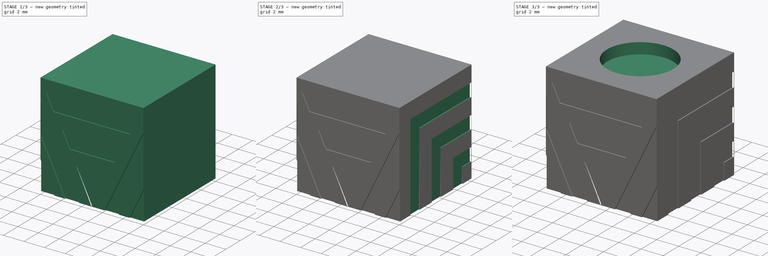
[diagram: build sequence overview — one tinted view per stage of 3, left to right]
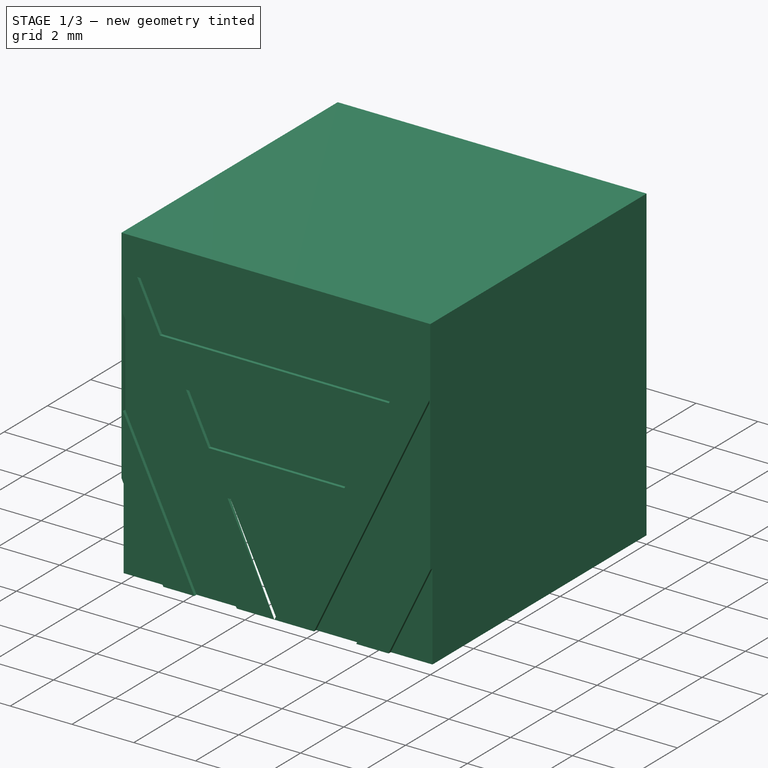
[diagram: stage 1 of 3 — iso view after this stage's code; geometry added in this stage tinted green]
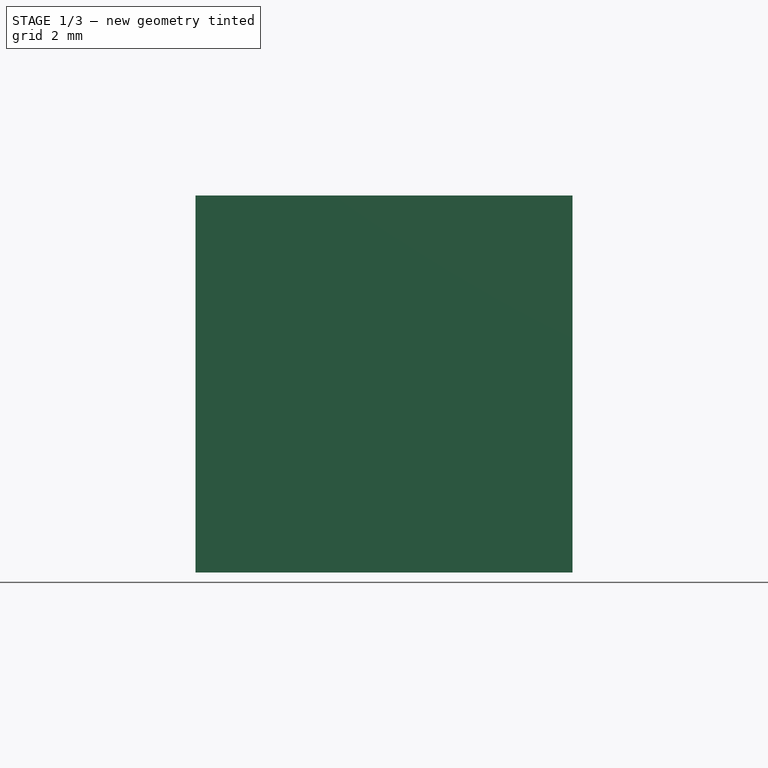
[diagram: stage 1 of 3 — front view after this stage's code; geometry added in this stage tinted green]
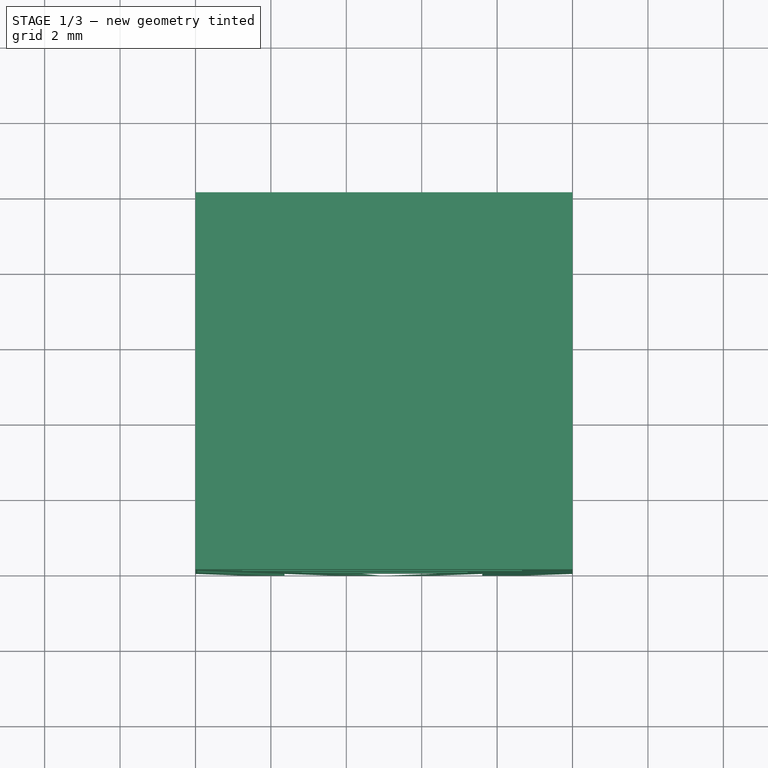
[diagram: stage 1 of 3 — top view after this stage's code; geometry added in this stage tinted green]
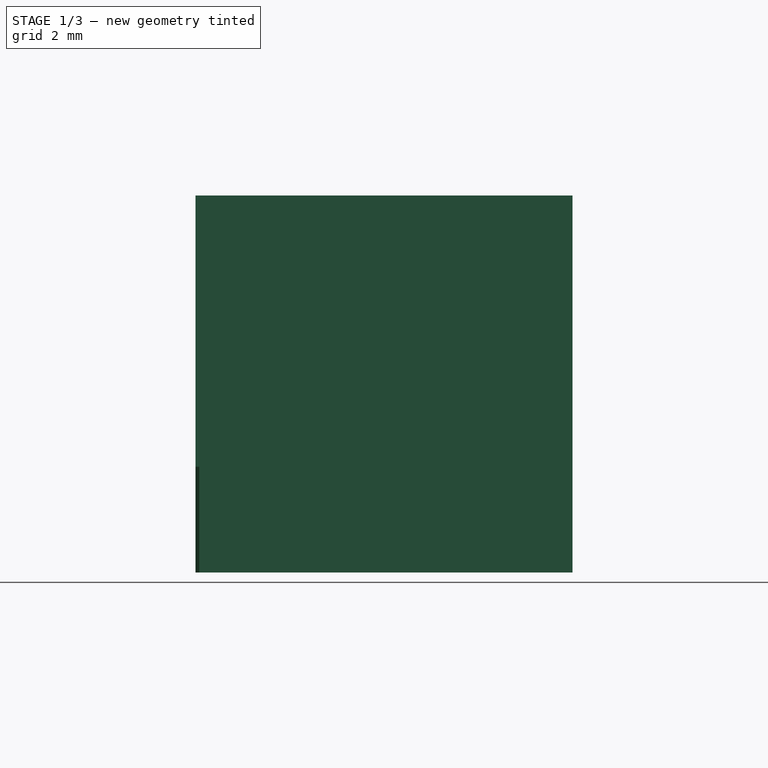
[diagram: stage 1 of 3 — right view after this stage's code; geometry added in this stage tinted green]
FCSTD DOCUMENT  (FreeCAD 0.16R6706 (Git))
Label: totem-third
License: All rights reserved
LicenseURL: http://en.wikipedia.org/wiki/All_rights_reserved
objects: Sketcher::SketchObject×6, PartDesign::Pocket×5, Part::Box×1, PartDesign::Pad×1, PartDesign::Chamfer×1
note: 20 computed .brp shape members not serialized (recipe doc carries the construction recipe); baked Part::Feature solids carry a one-line shape summary decoded from their .brp

FEATURE [Part::Box] Box  label="Cube"
  Height = 10
  Length = 10
  Width = 10
FEATURE [Sketcher::SketchObject] Sketch  label="Front "
  Placement = pos=(0,0,0) rot=(1,0,0;1.5708rad)
  Support = -> Box [Face3]
  sketch-geometry (25):
    g0: LineSegment StartX=-0.0133184 StartY=2.84897 StartZ=0 EndX=-0.0133184 EndY=-0.00063325 EndZ=0
    g1: LineSegment StartX=-0.0133184 StartY=-0.00063325 StartZ=0 EndX=1.35842 EndY=-0.00063325 EndZ=0
    g2: LineSegment StartX=1.35842 StartY=-0.00063325 StartZ=0 EndX=-0.0133184 EndY=2.84897 EndZ=0
    g3: LineSegment StartX=10.0181 StartY=2.84293 StartZ=0 EndX=10.0181 EndY=-0.00667754 EndZ=0
    g4: LineSegment StartX=10.0181 StartY=-0.00667754 StartZ=0 EndX=8.64639 EndY=-0.00667754 EndZ=0
    g5: LineSegment StartX=8.64639 StartY=-0.00667754 StartZ=0 EndX=10.0181 EndY=2.84293 EndZ=0
    g6: LineSegment StartX=0.0521967 StartY=7.64655 StartZ=0 EndX=0.0521967 EndY=4.79695 EndZ=0
    g7: LineSegment StartX=0.0521967 StartY=4.79695 StartZ=0 EndX=2.37799 EndY=-0.0345725 EndZ=0
    g8: LineSegment StartX=2.37799 StartY=-0.0345725 StartZ=0 EndX=3.74974 EndY=-0.0345725 EndZ=0
    g9: LineSegment StartX=3.74974 StartY=-0.0345725 StartZ=0 EndX=0.0521967 EndY=7.64655 EndZ=0
    g10: LineSegment StartX=6.23383 StartY=0 StartZ=0 EndX=7.60557 EndY=0 EndZ=0
    g11: LineSegment StartX=7.60557 StartY=0 StartZ=0 EndX=9.97114 EndY=4.91414 EndZ=0
    g12: LineSegment StartX=9.97114 StartY=4.91414 StartZ=0 EndX=9.97114 EndY=7.76374 EndZ=0
    g13: LineSegment StartX=9.97114 StartY=7.76374 StartZ=0 EndX=6.23383 EndY=0 EndZ=0
    g14: LineSegment StartX=3.4363 StartY=3.14915 StartZ=0 EndX=4.95224 EndY=0 EndZ=0
    g15: LineSegment StartX=4.95224 StartY=0 StartZ=0 EndX=6.46818 EndY=3.14915 EndZ=0
    g16: LineSegment StartX=6.46818 StartY=3.14915 StartZ=0 EndX=3.4363 EndY=3.14915 EndZ=0
    g17: LineSegment StartX=2.09301 StartY=5.9657 StartZ=0 EndX=2.8215 EndY=4.45236 EndZ=0
    g18: LineSegment StartX=2.8215 StartY=4.45236 StartZ=0 EndX=7.21657 EndY=4.45236 EndZ=0
    g19: LineSegment StartX=7.21657 StartY=4.45236 StartZ=0 EndX=7.94506 EndY=5.9657 EndZ=0
    g20: LineSegment StartX=7.94506 StartY=5.9657 StartZ=0 EndX=2.09301 EndY=5.9657 EndZ=0
    g21: LineSegment StartX=0.513832 StartY=8.83872 StartZ=0 EndX=1.24233 EndY=7.32537 EndZ=0
    g22: LineSegment StartX=1.24233 StartY=7.32537 StartZ=0 EndX=8.66119 EndY=7.32537 EndZ=0
    g23: LineSegment StartX=8.66119 StartY=7.32537 StartZ=0 EndX=9.38968 EndY=8.83872 EndZ=0
    g24: LineSegment StartX=9.38968 StartY=8.83872 StartZ=0 EndX=0.513832 EndY=8.83872 EndZ=0
  constraints (56):
    c: Vertical(g0)
    c: Coincident(g0,g1)
    c: Horizontal(g1)
    c: Coincident(g1,g2)
    c: Coincident(g2,g0)
    c: Vertical(g3)
    c: Coincident(g3,g4)
    c: Horizontal(g4)
    c: Coincident(g4,g5)
    c: Coincident(g5,g3)
    c: Vertical(g6)
    c: Coincident(g6,g7)
    c: Coincident(g7,g8)
    c: Horizontal(g8)
    c: Coincident(g8,g9)
    c: Coincident(g9,g6)
    c: PointOnObject(g10,g-1)
    c: Horizontal(g10)
    c: Coincident(g10,g11)
    c: Coincident(g11,g12)
    c: Coincident(g12,g13)
    c: Coincident(g13,g10)
    c: PointOnObject(g14,g-1)
    c: Coincident(g14,g15)
    c: Coincident(g15,g16)
    c: Coincident(g16,g14)
    c: Horizontal(g16)
    c: Coincident(g17,g18)
    c: Horizontal(g18)
    c: Coincident(g18,g19)
    c: Coincident(g19,g20)
    c: Coincident(g20,g17)
    c: Horizontal(g20)
    c: Coincident(g21,g22)
    c: Horizontal(g22)
    c: Coincident(g22,g23)
    c: Coincident(g23,g24)
    c: Coincident(g24,g21)
    c: Horizontal(g24)
    c: Vertical(g12)
    c: Parallel(g9,g7)
    c: Parallel(g7,g2)
    c: Parallel(g13,g11)
    c: Parallel(g11,g5)
    c: Parallel(g9,g21)
    c: Parallel(g17,g9)
    c: Parallel(g14,g9)
    c: Parallel(g15,g13)
    c: Parallel(g19,g13)
    c: Parallel(g23,g13)
    c: Equal(g17,g21)
    c: Equal(g1,g8)
    c: Equal(g10,g4)
    c: Equal(g10,g8)
    c: Equal(g6,g12)
    c: Equal(g23,g21)
FEATURE [PartDesign::Pocket] Pocket
  Length = 0.1
  Sketch = -> Sketch
  Type = 0
FEATURE [Sketcher::SketchObject] Sketch001  label="Side A"
  Placement = pos=(0,0,0) rot=(0.57735,-0.57735,-0.57735;2.0944rad)
  Support = -> Pocket [Face1]
  sketch-geometry (18):
    g0: LineSegment StartX=-8.57662 StartY=0 StartZ=0 EndX=-7.12132 EndY=0 EndZ=0
    g1: LineSegment StartX=-7.12132 StartY=0 StartZ=0 EndX=-7.12132 EndY=2.83547 EndZ=0
    g2: LineSegment StartX=-7.12132 StartY=2.83547 StartZ=0 EndX=-9.95678 EndY=2.83547 EndZ=0
    g3: LineSegment StartX=-9.95678 StartY=2.83547 StartZ=0 EndX=-9.95678 EndY=1.38016 EndZ=0
    g4: LineSegment StartX=-9.95678 StartY=1.38016 StartZ=0 EndX=-8.57662 EndY=1.38016 EndZ=0
    g5: LineSegment StartX=-8.57662 StartY=1.38016 StartZ=0 EndX=-8.57662 EndY=0 EndZ=0
    g6: LineSegment StartX=-9.957 StartY=5.59908 StartZ=0 EndX=-9.957 EndY=4.14377 EndZ=0
    g7: LineSegment StartX=-9.957 StartY=4.14377 StartZ=0 EndX=-5.81323 EndY=4.14377 EndZ=0
    g8: LineSegment StartX=-5.81323 StartY=4.14377 StartZ=0 EndX=-5.81323 EndY=0 EndZ=0
    g9: LineSegment StartX=-5.81323 StartY=0 StartZ=0 EndX=-4.35793 EndY=0 EndZ=0
    g10: LineSegment StartX=-4.35793 StartY=0 StartZ=0 EndX=-4.35793 EndY=5.59908 EndZ=0
    g11: LineSegment StartX=-4.35793 StartY=5.59908 StartZ=0 EndX=-9.957 EndY=5.59908 EndZ=0
    g12: LineSegment StartX=-9.98873 StartY=8.65887 StartZ=0 EndX=-9.98873 EndY=7.20357 EndZ=0
    g13: LineSegment StartX=-9.98873 StartY=7.20357 StartZ=0 EndX=-2.78516 EndY=7.20357 EndZ=0
    g14: LineSegment StartX=-2.78516 StartY=7.20357 StartZ=0 EndX=-2.78516 EndY=0 EndZ=0
    g15: LineSegment StartX=-2.78516 StartY=0 StartZ=0 EndX=-1.32986 EndY=0 EndZ=0
    g16: LineSegment StartX=-1.32986 StartY=0 StartZ=0 EndX=-1.32986 EndY=8.65887 EndZ=0
    g17: LineSegment StartX=-1.32986 StartY=8.65887 StartZ=0 EndX=-9.98873 EndY=8.65887 EndZ=0
  constraints (47):
    c: PointOnObject(g0,g-1)
    c: PointOnObject(g0,g-1)
    c: Coincident(g0,g1)
    c: Vertical(g1)
    c: Coincident(g1,g2)
    c: Horizontal(g2)
    c: Coincident(g2,g3)
    c: Vertical(g3)
    c: Coincident(g3,g4)
    c: Coincident(g4,g5)
    c: Coincident(g5,g0)
    c: Vertical(g6)
    c: Coincident(g6,g7)
    c: Horizontal(g7)
    c: Coincident(g7,g8)
    c: PointOnObject(g8,g-1)
    c: Coincident(g8,g9)
    c: PointOnObject(g9,g-1)
    c: Coincident(g9,g10)
    c: Coincident(g10,g11)
    c: Coincident(g11,g6)
    c: Horizontal(g11)
    c: Vertical(g12)
    c: Coincident(g12,g13)
    c: Horizontal(g13)
    c: Coincident(g13,g14)
    c: Vertical(g14)
    c: Coincident(g14,g15)
    c: PointOnObject(g15,g-1)
    c: Horizontal(g15)
    c: Coincident(g15,g16)
    c: Vertical(g16)
    c: Coincident(g16,g17)
    c: Coincident(g17,g12)
    c: Horizontal(g17)
    c: Vertical(g5)
    c: Horizontal(g4)
    c: Vertical(g8)
    c: Vertical(g10)
    c: Equal(g3,g6)
    c: Equal(g12,g6)
    c: Equal(g0,g9)
    c: Equal(g15,g9)
    c: Equal(g3,g0)
    c: Equal(g4,g5)
    c: Equal(g7,g8)
    c: Equal(g13,g14)
FEATURE [PartDesign::Pocket] Pocket001
  Length = 0.1
  Sketch = -> Sketch001
  Type = 0
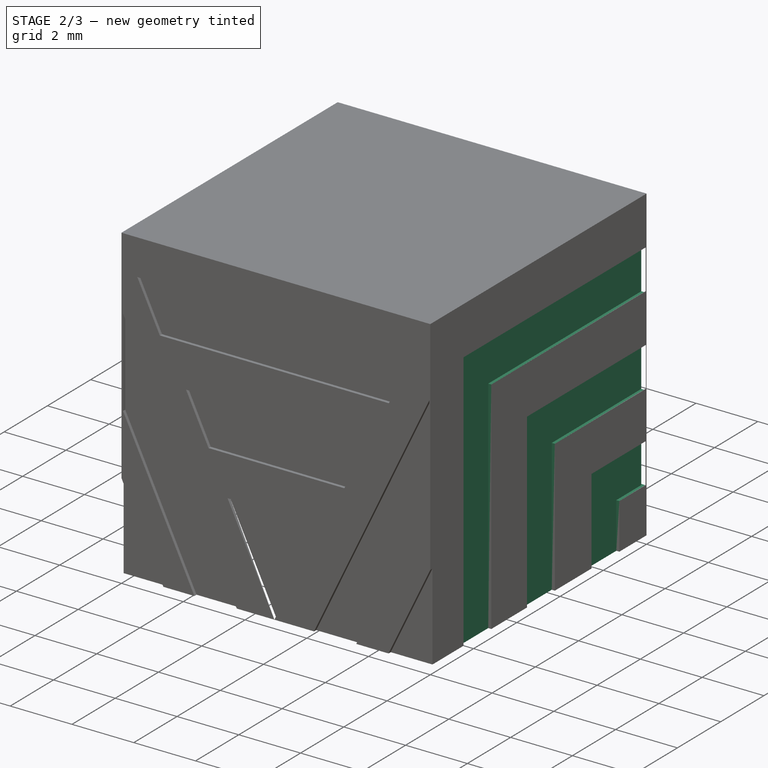
[diagram: stage 2 of 3 — iso view after this stage's code; geometry added in this stage tinted green]
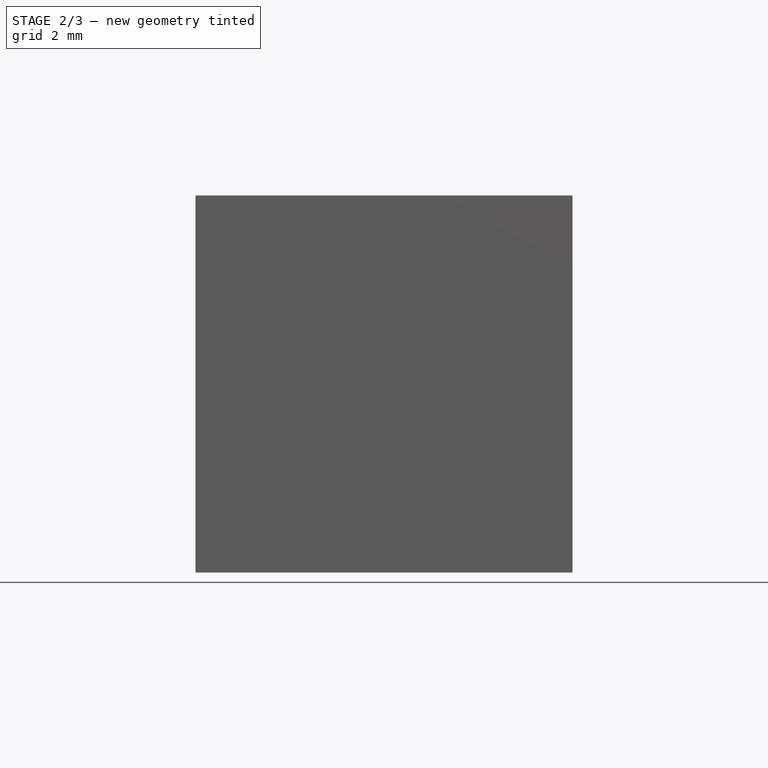
[diagram: stage 2 of 3 — front view after this stage's code; geometry added in this stage tinted green]
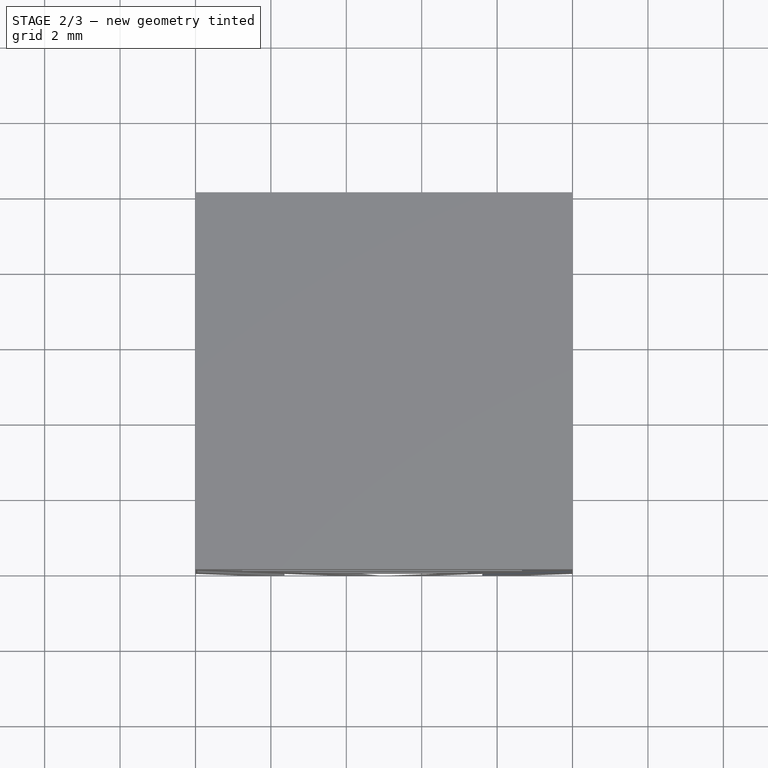
[diagram: stage 2 of 3 — top view after this stage's code; geometry added in this stage tinted green]
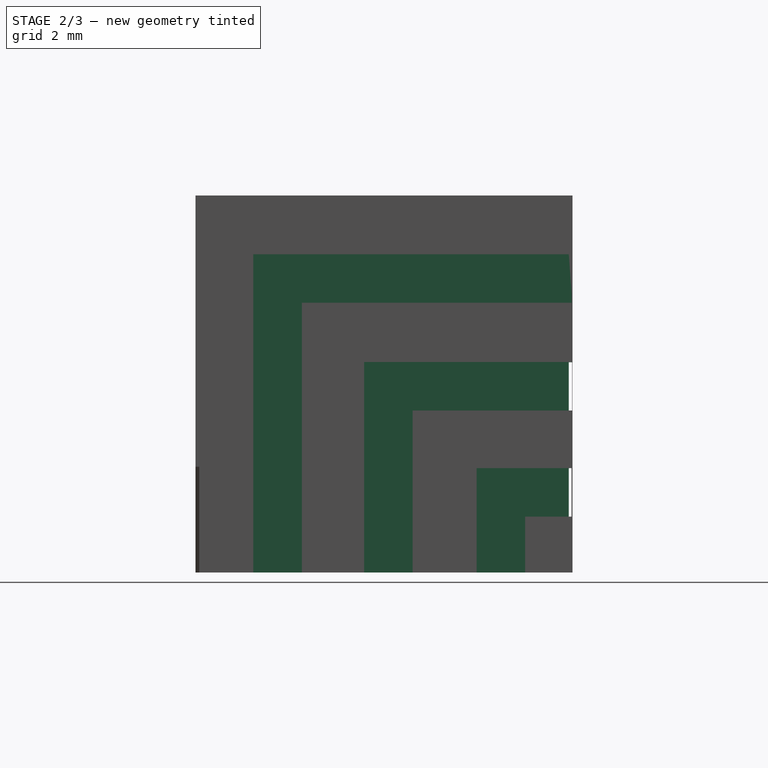
[diagram: stage 2 of 3 — right view after this stage's code; geometry added in this stage tinted green]
FEATURE [Sketcher::SketchObject] Sketch002  label="Side B"
  Placement = pos=(10,0,0) rot=(0.57735,0.57735,0.57735;2.0944rad)
  Support = -> Pocket001 [Face27]
  sketch-geometry (18):
    g0: LineSegment StartX=8.74259 StartY=0 StartZ=0 EndX=8.74259 EndY=1.48226 EndZ=0
    g1: LineSegment StartX=8.74259 StartY=1.48226 StartZ=0 EndX=9.972 EndY=1.48226 EndZ=0
    g2: LineSegment StartX=9.972 StartY=1.48226 StartZ=0 EndX=9.972 EndY=2.76917 EndZ=0
    g3: LineSegment StartX=9.972 StartY=2.76917 StartZ=0 EndX=7.45568 EndY=2.76917 EndZ=0
    g4: LineSegment StartX=7.45568 StartY=2.76917 StartZ=0 EndX=7.45568 EndY=0 EndZ=0
    g5: LineSegment StartX=7.45568 StartY=0 StartZ=0 EndX=8.74259 EndY=0 EndZ=0
    g6: LineSegment StartX=5.7583 StartY=0 StartZ=0 EndX=5.7583 EndY=4.29649 EndZ=0
    g7: LineSegment StartX=5.7583 StartY=4.29649 StartZ=0 EndX=9.9899 EndY=4.29649 EndZ=0
    g8: LineSegment StartX=9.9899 StartY=4.29649 StartZ=0 EndX=9.9899 EndY=5.5834 EndZ=0
    g9: LineSegment StartX=9.9899 StartY=5.5834 StartZ=0 EndX=4.47138 EndY=5.5834 EndZ=0
    g10: LineSegment StartX=4.47138 StartY=5.5834 StartZ=0 EndX=4.47138 EndY=0 EndZ=0
    g11: LineSegment StartX=4.47138 StartY=0 StartZ=0 EndX=5.7583 EndY=0 EndZ=0
    g12: LineSegment StartX=2.82081 StartY=0 StartZ=0 EndX=2.82081 EndY=7.15383 EndZ=0
    g13: LineSegment StartX=2.82081 StartY=7.15383 StartZ=0 EndX=9.97464 EndY=7.15383 EndZ=0
    g14: LineSegment StartX=9.97464 StartY=7.15383 StartZ=0 EndX=9.97464 EndY=8.44074 EndZ=0
    g15: LineSegment StartX=9.97464 StartY=8.44074 StartZ=0 EndX=1.5339 EndY=8.44074 EndZ=0
    g16: LineSegment StartX=1.5339 StartY=8.44074 StartZ=0 EndX=1.5339 EndY=0 EndZ=0
    g17: LineSegment StartX=1.5339 StartY=0 StartZ=0 EndX=2.82081 EndY=0 EndZ=0
  constraints (45):
    c: PointOnObject(g0,g-1)
    c: Coincident(g0,g1)
    c: Horizontal(g1)
    c: Coincident(g1,g2)
    c: Vertical(g2)
    c: Coincident(g2,g3)
    c: Coincident(g3,g4)
    c: PointOnObject(g4,g-1)
    c: Coincident(g4,g5)
    c: Coincident(g5,g0)
    c: PointOnObject(g6,g-1)
    c: Vertical(g6)
    c: Coincident(g6,g7)
    c: Horizontal(g7)
    c: Coincident(g7,g8)
    c: Coincident(g8,g9)
    c: Horizontal(g9)
    c: Coincident(g9,g10)
    c: PointOnObject(g10,g-1)
    c: Vertical(g10)
    c: Coincident(g10,g11)
    c: Coincident(g11,g6)
    c: PointOnObject(g12,g-1)
    c: Vertical(g12)
    c: Coincident(g12,g13)
    c: Horizontal(g13)
    c: Coincident(g13,g14)
    c: Vertical(g14)
    c: Coincident(g14,g15)
    c: Horizontal(g15)
    c: Coincident(g15,g16)
    c: PointOnObject(g16,g-1)
    c: Vertical(g16)
    c: Coincident(g16,g17)
    c: Coincident(g17,g12)
    c: Equal(g17,g11)
    c: Equal(g11,g5)
    c: Equal(g2,g8)
    c: Equal(g8,g14)
    c: Vertical(g8)
    c: Horizontal(g3)
    c: Vertical(g4)
    c: Equal(g13,g12)
    c: Vertical(g0)
    c: Equal(g2,g5)
FEATURE [PartDesign::Pocket] Pocket002
  Length = 0.1
  Sketch = -> Sketch002
  Type = 0
FEATURE [Sketcher::SketchObject] Sketch003  label="Back"
  Placement = pos=(0,10,0) rot=(0,0.707107,0.707107;3.14159rad)
  Support = -> Pocket002 [Face4]
  sketch-geometry (16):
    g0: LineSegment StartX=-9.98346 StartY=2.81282 StartZ=0 EndX=-9.98346 EndY=1.45818 EndZ=0
    g1: LineSegment StartX=-9.98346 StartY=1.45818 StartZ=0 EndX=0 EndY=1.45818 EndZ=0
    g2: LineSegment StartX=0 StartY=1.45818 StartZ=0 EndX=0 EndY=2.81282 EndZ=0
    g3: LineSegment StartX=0 StartY=2.81282 StartZ=0 EndX=-9.98346 EndY=2.81282 EndZ=0
    g4: LineSegment StartX=-9.98395 StartY=5.57729 StartZ=0 EndX=-9.98395 EndY=4.22265 EndZ=0
    g5: LineSegment StartX=-9.98395 StartY=4.22265 StartZ=0 EndX=0 EndY=4.22265 EndZ=0
    g6: LineSegment StartX=0 StartY=4.22265 StartZ=0 EndX=0 EndY=5.57729 EndZ=0
    g7: LineSegment StartX=0 StartY=5.57729 StartZ=0 EndX=-9.98395 EndY=5.57729 EndZ=0
    g8: LineSegment StartX=-9.9885 StartY=8.44085 StartZ=0 EndX=-5.74089 EndY=8.44085 EndZ=0
    g9: LineSegment StartX=-5.74089 StartY=8.44085 StartZ=0 EndX=-5.74089 EndY=7.08621 EndZ=0
    g10: LineSegment StartX=-5.74089 StartY=7.08621 StartZ=0 EndX=-9.9885 EndY=7.08621 EndZ=0
    g11: LineSegment StartX=-9.9885 StartY=7.08621 StartZ=0 EndX=-9.9885 EndY=8.44085 EndZ=0
    g12: LineSegment StartX=-0.0219898 StartY=8.47256 StartZ=0 EndX=-4.2696 EndY=8.47256 EndZ=0
    g13: LineSegment StartX=-4.2696 StartY=8.47256 StartZ=0 EndX=-4.2696 EndY=7.11791 EndZ=0
    g14: LineSegment StartX=-4.2696 StartY=7.11791 StartZ=0 EndX=-0.0219898 EndY=7.11791 EndZ=0
    g15: LineSegment StartX=-0.0219898 StartY=7.11791 StartZ=0 EndX=-0.0219898 EndY=8.47256 EndZ=0
  constraints (38):
    c: Vertical(g0)
    c: Coincident(g0,g1)
    c: PointOnObject(g1,g-2)
    c: Horizontal(g1)
    c: Coincident(g1,g2)
    c: PointOnObject(g2,g-2)
    c: Coincident(g2,g3)
    c: Coincident(g3,g0)
    c: Horizontal(g3)
    c: Vertical(g4)
    c: Coincident(g4,g5)
    c: PointOnObject(g5,g-2)
    c: Horizontal(g5)
    c: Coincident(g5,g6)
    c: Vertical(g6)
    c: Coincident(g6,g7)
    c: Coincident(g7,g4)
    c: Horizontal(g7)
    c: Horizontal(g8)
    c: Coincident(g8,g9)
    c: Vertical(g9)
    c: Coincident(g9,g10)
    c: Horizontal(g10)
    c: Coincident(g10,g11)
    c: Coincident(g11,g8)
    c: Vertical(g11)
    c: Coincident(g12,g13)
    c: Vertical(g13)
    c: Coincident(g13,g14)
    c: Horizontal(g14)
    c: Coincident(g14,g15)
    c: Coincident(g15,g12)
    c: Vertical(g15)
    c: Horizontal(g12)
    c: Equal(g9,g13)
    c: Equal(g11,g4)
    c: Equal(g4,g0)
    c: Equal(g12,g8)
FEATURE [PartDesign::Pocket] Pocket003
  Length = 0.1
  Sketch = -> Sketch003
  Type = 0
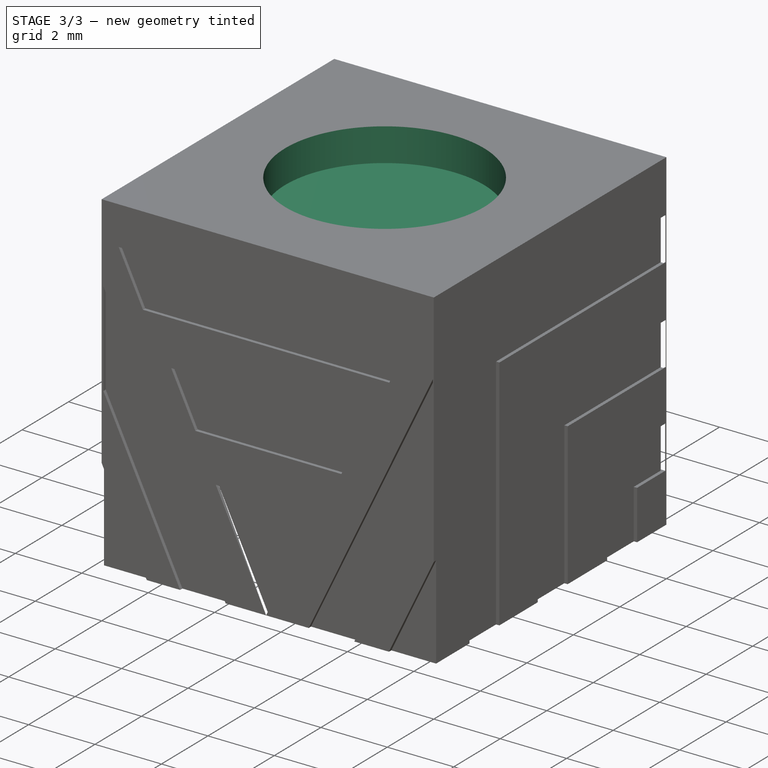
[diagram: stage 3 of 3 — iso view after this stage's code; geometry added in this stage tinted green]
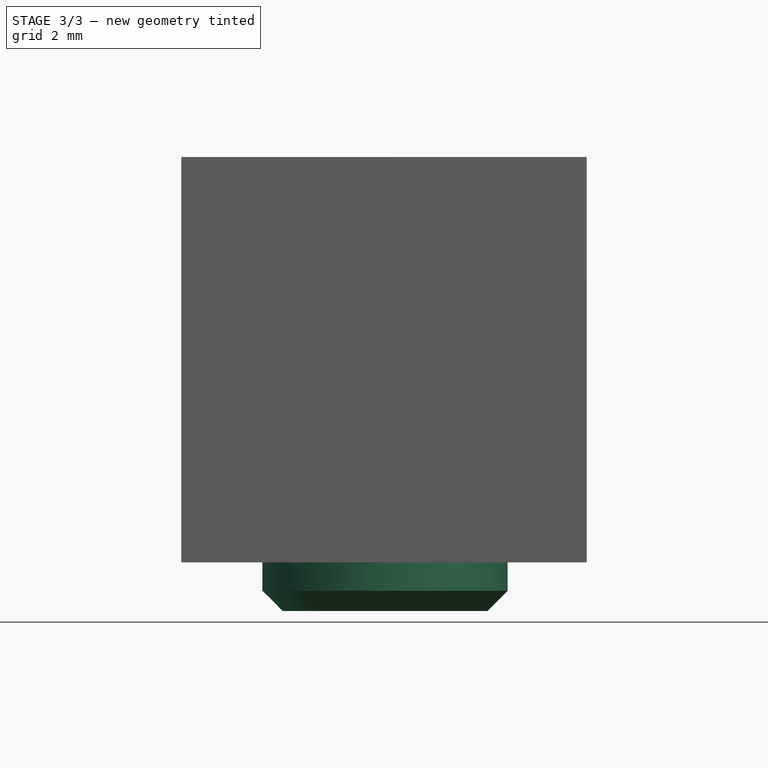
[diagram: stage 3 of 3 — front view after this stage's code; geometry added in this stage tinted green]
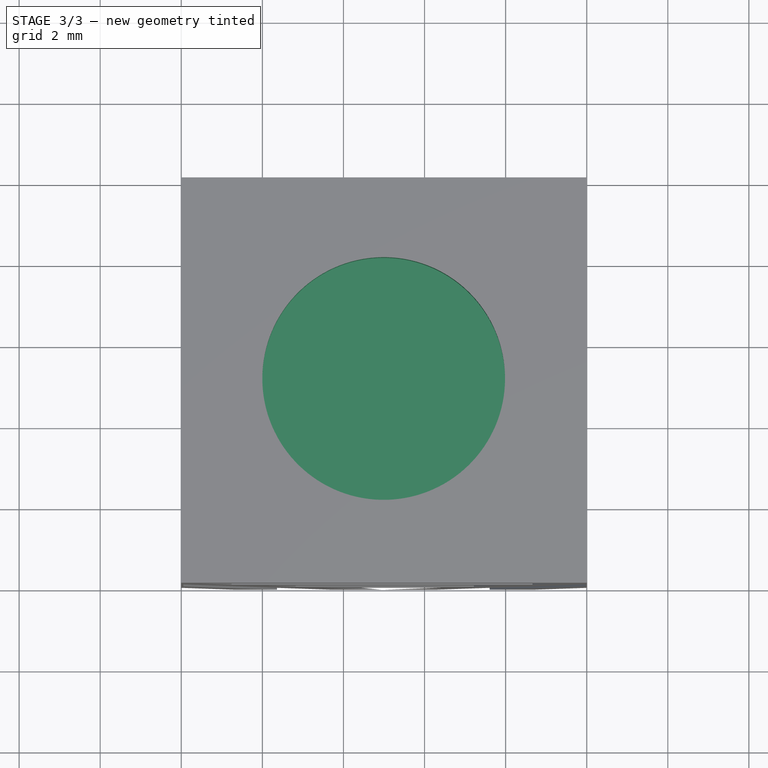
[diagram: stage 3 of 3 — top view after this stage's code; geometry added in this stage tinted green]
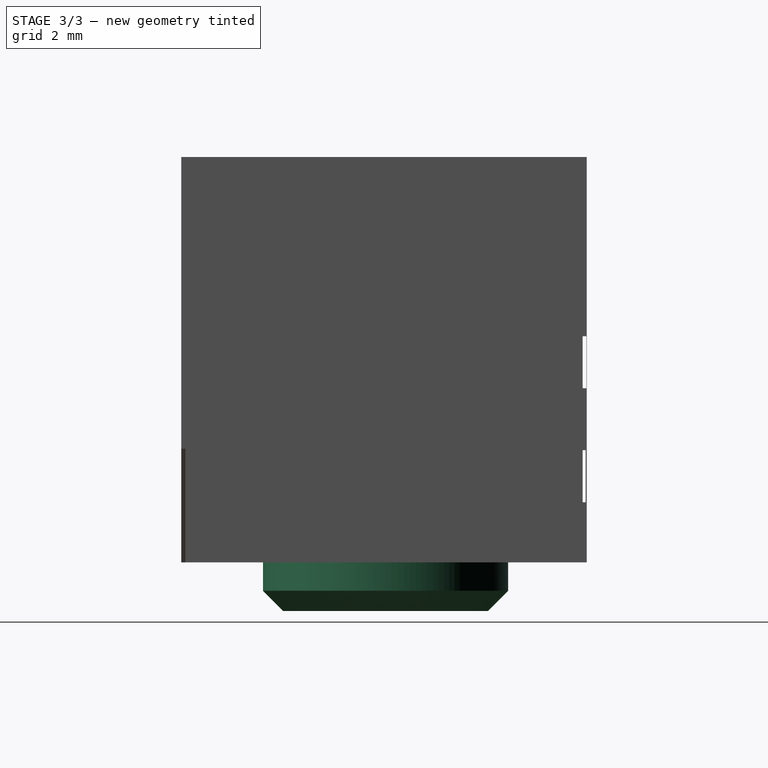
[diagram: stage 3 of 3 — right view after this stage's code; geometry added in this stage tinted green]
FEATURE [Sketcher::SketchObject] Sketch005
  Placement = pos=(0,0,10) rot=(0,0,1;0rad)
  Support = -> Pocket003 [Face3]
  sketch-geometry (1):
    g0: Circle CenterX=4.99216 CenterY=5.03797 CenterZ=0 NormalX=0 NormalY=0 NormalZ=1 Radius=2.99346
FEATURE [PartDesign::Pocket] Pocket004
  Length = 1
  Sketch = -> Sketch005
  Type = 0
FEATURE [Sketcher::SketchObject] Sketch004
  Placement = pos=(0,0,0) rot=(1,0,0;3.14159rad)
  Support = -> Pocket004 [Face9]
  sketch-geometry (1):
    g0: Circle CenterX=5.02612 CenterY=-5.03797 CenterZ=0 NormalX=0 NormalY=0 NormalZ=1 Radius=3.02432
FEATURE [PartDesign::Pad] Pad
  Length = 1.2
  Length2 = 100
  Sketch = -> Sketch004
  Type = 0
FEATURE [PartDesign::Chamfer] Chamfer
  Base = -> Pad [Edge269]
  Size = 0.5
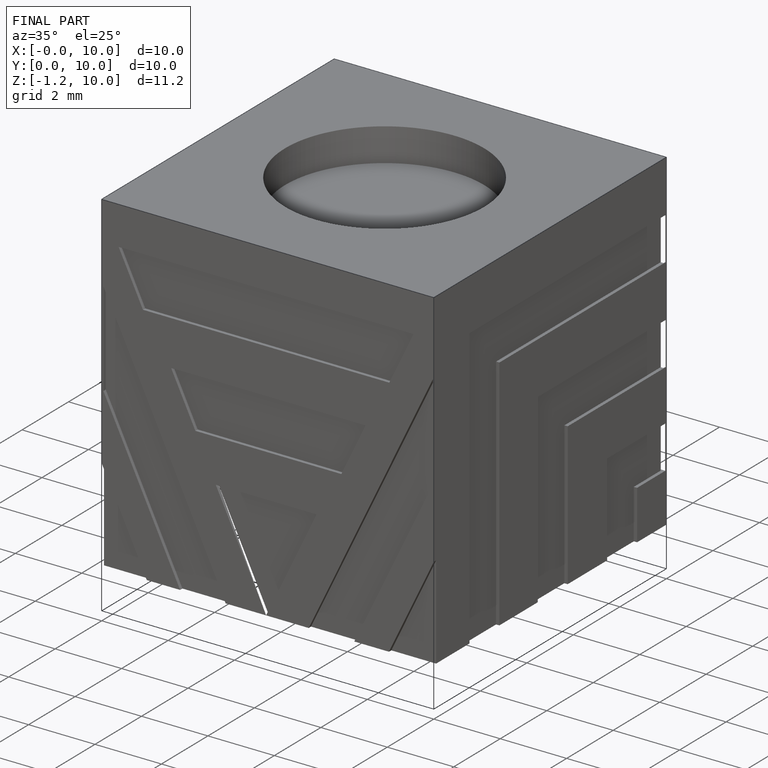
[diagram: finished part — iso view with bounding-box wireframe]
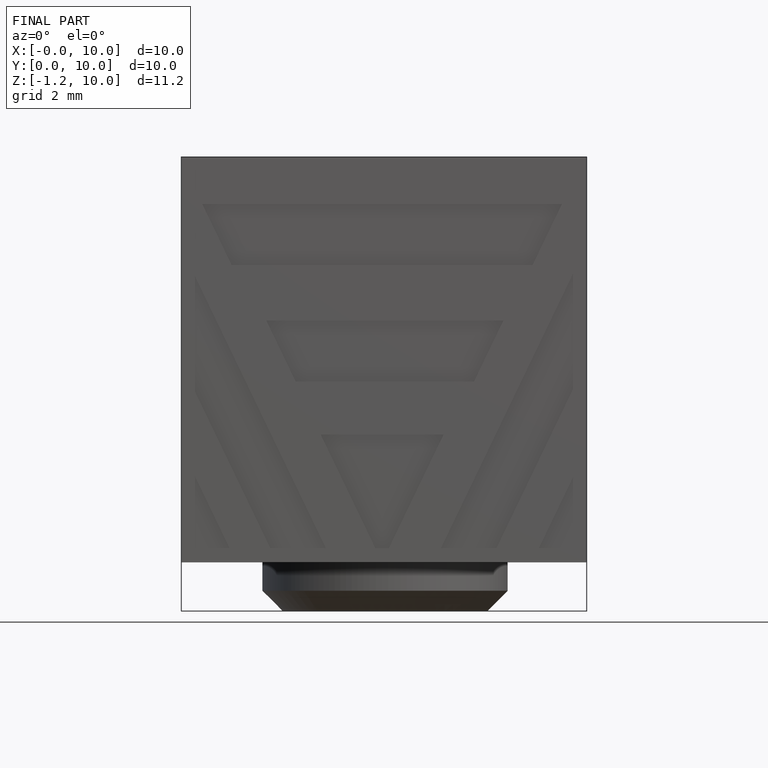
[diagram: finished part — front view with bounding-box wireframe]
